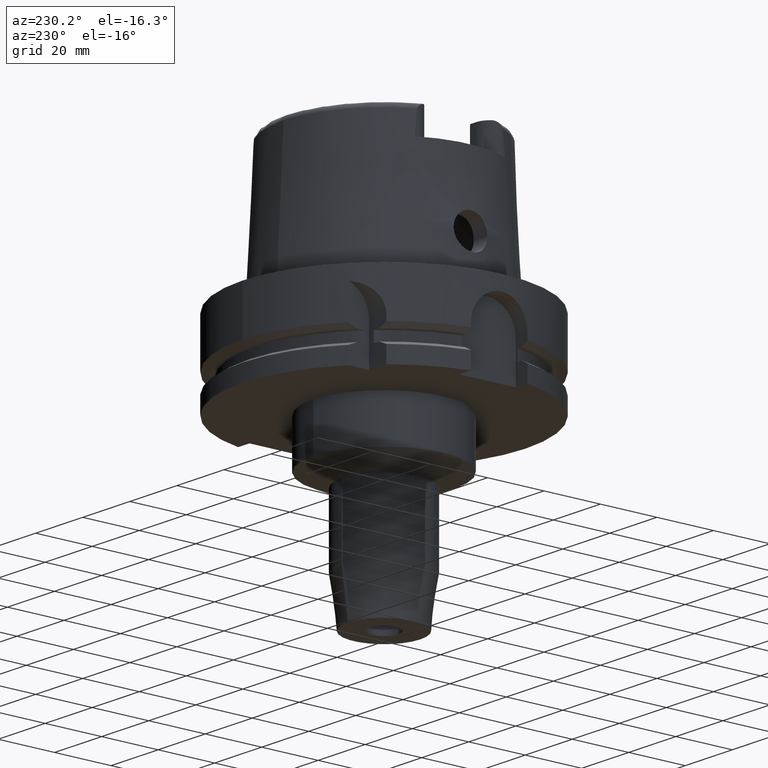
[diagram: clean part render]
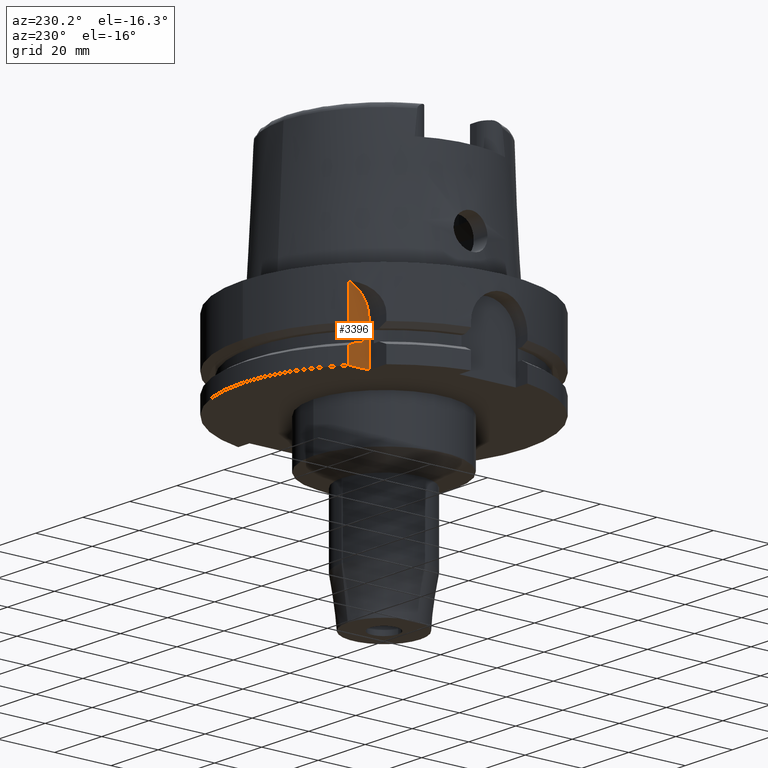
[diagram: same view with one face highlighted and labeled with its STEP entity id]
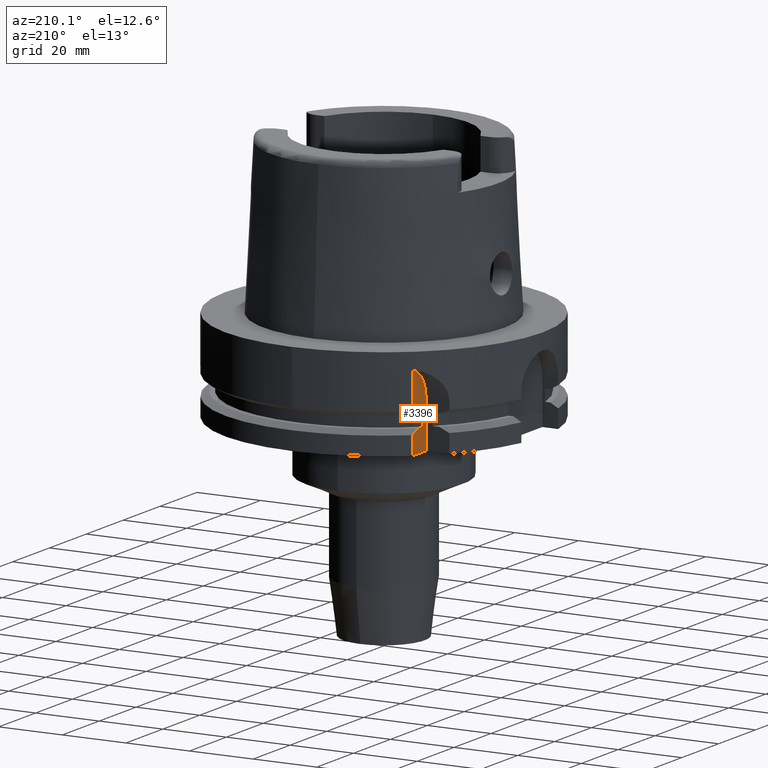
[diagram: same view with one face highlighted and labeled with its STEP entity id]
A machine part, auxiliary view. The second image highlights one B-rep face of the part: STEP entity #3396.
A second angle (auxiliary view) of the same face is appended — the face is thin or edge-on in the first view.
In plain terms, the highlighted planar face has unit normal (1, 0, 0).
Its self-contained STEP definition (entity closure, byte-faithful):
#1230=DIRECTION('',(4.798503851106E-14,1.E0,0.E0));
#1231=VECTOR('',#1230,7.329756630709E0);
#1232=CARTESIAN_POINT('',(-3.15E1,3.15E1,-2.9E1));
#1233=LINE('',#1232,#1231);
#1237=DIRECTION('',(-4.433903906541E-7,9.999999999999E-1,9.391792532212E-14));
#1238=VECTOR('',#1237,2.194015601002E0);
#1239=CARTESIAN_POINT('',(-3.15E1,3.352238058372E1,-1.8125E1));
#1240=LINE('',#1239,#1238);
#1244=CARTESIAN_POINT('',(-3.150000097281E1,3.571639618472E1,-1.8125E1));
#1245=CARTESIAN_POINT('',(-3.150000097281E1,3.606333863821E1,
-1.797477179943E1));
#1246=CARTESIAN_POINT('',(-3.150000002064E1,3.675646915239E1,
-1.767266204693E1));
#1247=CARTESIAN_POINT('',(-3.149999846856E1,3.779429574907E1,
-1.721518165955E1));
#1248=CARTESIAN_POINT('',(-3.150000355959E1,3.848477495946E1,
-1.690706900025E1));
#1249=CARTESIAN_POINT('',(-3.150000355959E1,3.882975374305E1,
-1.675239179145E1));
#1254=CARTESIAN_POINT('',(-3.15E1,4.15E1,-1.463689785921E1));
#1255=DIRECTION('',(1.E0,0.E0,0.E0));
#1256=DIRECTION('',(0.E0,-2.670243369290E-1,9.636897859206E-1));
#1257=AXIS2_PLACEMENT_3D('',#1254,#1255,#1256);
#1262=DIRECTION('',(6.188494047475E-7,5.020316378014E-7,-9.999999999997E-1));
#1263=VECTOR('',#1262,5.752391791881E0);
#1264=CARTESIAN_POINT('',(-3.150000355986E1,3.882975374283E1,
-2.324760820812E1));
#1265=LINE('',#1264,#1263);
#1427=DIRECTION('',(0.E0,0.E0,1.E0));
#1428=VECTOR('',#1427,1.436310214079E1);
#1429=CARTESIAN_POINT('',(-3.15E1,3.15E1,-2.9E1));
#1430=LINE('',#1429,#1428);
#1458=DIRECTION('',(-3.028823767049E-7,-2.457085509676E-7,-9.999999999999E-1));
#1459=VECTOR('',#1458,1.175239179145E1);
#1460=CARTESIAN_POINT('',(-3.15E1,3.882975663071E1,-5.000000000003E0));
#1461=LINE('',#1460,#1459);
#1578=DIRECTION('',(0.E0,0.E0,-1.E0));
#1579=VECTOR('',#1578,3.75E0);
#1580=CARTESIAN_POINT('',(-3.15E1,3.352238058372E1,-1.8125E1));
#1581=LINE('',#1580,#1579);
#1592=DIRECTION('',(-4.434271693799E-7,9.999999999999E-1,-9.229865077722E-14));
#1593=VECTOR('',#1592,2.194015600297E0);
#1594=CARTESIAN_POINT('',(-3.15E1,3.352238058372E1,-2.1875E1));
#1595=LINE('',#1594,#1593);
#1631=CARTESIAN_POINT('',(-3.150000097289E1,3.571639618402E1,-2.1875E1));
#1632=CARTESIAN_POINT('',(-3.150000097289E1,3.605789002737E1,
-2.202286891912E1));
#1633=CARTESIAN_POINT('',(-3.150000002063E1,3.674380017621E1,
-2.232173054124E1));
#1634=CARTESIAN_POINT('',(-3.149999846845E1,3.778158713267E1,
-2.277929841516E1));
#1635=CARTESIAN_POINT('',(-3.150000355986E1,3.847935690318E1,
-2.309050172011E1));
#1636=CARTESIAN_POINT('',(-3.150000355986E1,3.882975374283E1,
-2.324760820812E1));
#2349=CARTESIAN_POINT('',(-3.15E1,3.15E1,-2.9E1));
#2350=CARTESIAN_POINT('',(-3.15E1,3.882975663071E1,-2.9E1));
#2351=VERTEX_POINT('',#2349);
#2352=VERTEX_POINT('',#2350);
#2375=CARTESIAN_POINT('',(-3.150000355986E1,3.882975374283E1,
-2.324760820812E1));
#2376=VERTEX_POINT('',#2375);
#2377=VERTEX_POINT('',#1631);
#2378=CARTESIAN_POINT('',(-3.15E1,3.352238058372E1,-2.1875E1));
#2379=VERTEX_POINT('',#2378);
#2380=CARTESIAN_POINT('',(-3.15E1,3.352238058372E1,-1.8125E1));
#2381=VERTEX_POINT('',#2380);
#2382=CARTESIAN_POINT('',(-3.150000097281E1,3.571639618472E1,-1.8125E1));
#2383=VERTEX_POINT('',#2382);
#2384=VERTEX_POINT('',#1249);
#2385=CARTESIAN_POINT('',(-3.15E1,3.882975663071E1,-5.000000000003E0));
#2386=VERTEX_POINT('',#2385);
#2387=CARTESIAN_POINT('',(-3.15E1,3.15E1,-1.463689785921E1));
#2388=VERTEX_POINT('',#2387);
#3370=CARTESIAN_POINT('',(-3.15E1,0.E0,0.E0));
#3371=DIRECTION('',(1.E0,0.E0,0.E0));
#3372=DIRECTION('',(0.E0,0.E0,1.E0));
#3373=AXIS2_PLACEMENT_3D('',#3370,#3371,#3372);
#3374=PLANE('',#3373);
#3375=ORIENTED_EDGE('',*,*,#3337,.T.);
#3377=ORIENTED_EDGE('',*,*,#3376,.F.);
#3379=ORIENTED_EDGE('',*,*,#3378,.F.);
#3381=ORIENTED_EDGE('',*,*,#3380,.F.);
#3383=ORIENTED_EDGE('',*,*,#3382,.F.);
#3385=ORIENTED_EDGE('',*,*,#3384,.T.);
#3387=ORIENTED_EDGE('',*,*,#3386,.T.);
#3389=ORIENTED_EDGE('',*,*,#3388,.F.);
#3391=ORIENTED_EDGE('',*,*,#3390,.T.);
#3393=ORIENTED_EDGE('',*,*,#3392,.F.);
#3394=EDGE_LOOP('',(#3375,#3377,#3379,#3381,#3383,#3385,#3387,#3389,#3391,
#3393));
#3395=FACE_OUTER_BOUND('',#3394,.F.);
#1250=B_SPLINE_CURVE_WITH_KNOTS('',3,(#1244,#1245,#1246,#1247,#1248,#1249),
.UNSPECIFIED.,.F.,.F.,(4,1,1,4),(0.E0,3.333333333333E-1,6.666666666667E-1,1.E0),
.UNSPECIFIED.);
#1258=CIRCLE('',#1257,1.E1);
#1637=B_SPLINE_CURVE_WITH_KNOTS('',3,(#1631,#1632,#1633,#1634,#1635,#1636),
.UNSPECIFIED.,.F.,.F.,(4,1,1,4),(0.E0,3.333333333333E-1,6.666666666667E-1,1.E0),
.UNSPECIFIED.);
#3337=EDGE_CURVE('',#2351,#2352,#1233,.T.);
#3376=EDGE_CURVE('',#2376,#2352,#1265,.T.);
#3378=EDGE_CURVE('',#2377,#2376,#1637,.T.);
#3380=EDGE_CURVE('',#2379,#2377,#1595,.T.);
#3382=EDGE_CURVE('',#2381,#2379,#1581,.T.);
#3384=EDGE_CURVE('',#2381,#2383,#1240,.T.);
#3386=EDGE_CURVE('',#2383,#2384,#1250,.T.);
#3388=EDGE_CURVE('',#2386,#2384,#1461,.T.);
#3390=EDGE_CURVE('',#2386,#2388,#1258,.T.);
#3392=EDGE_CURVE('',#2351,#2388,#1430,.T.);
#3396=ADVANCED_FACE('',(#3395),#3374,.F.);